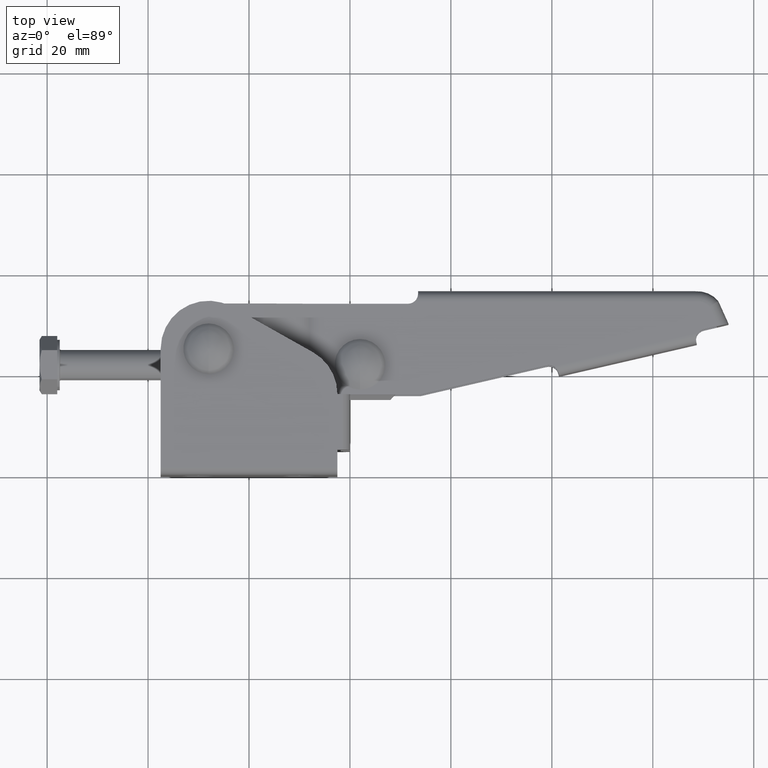
[diagram: clean part render]
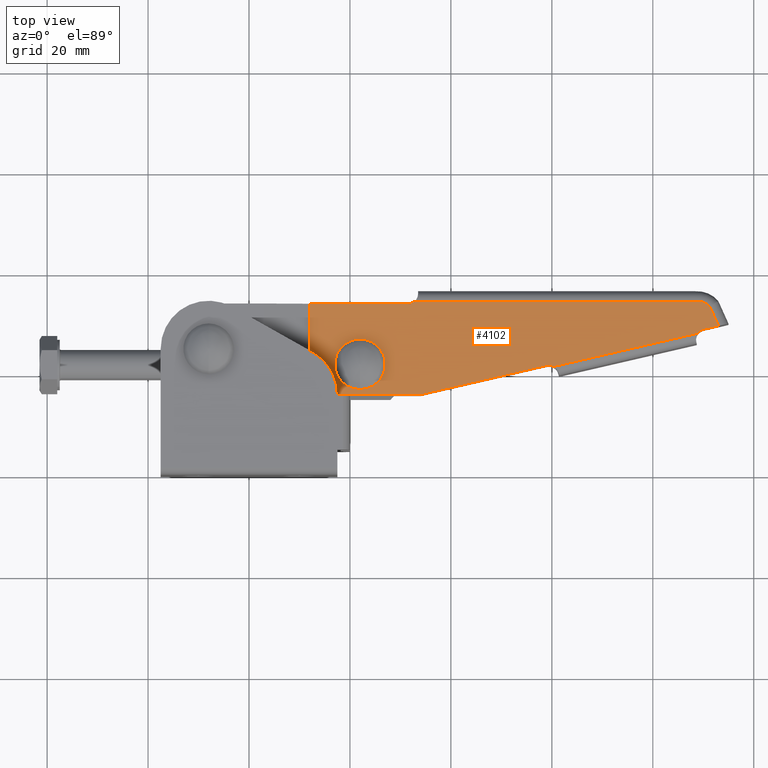
[diagram: same view with one face highlighted and labeled with its STEP entity id]
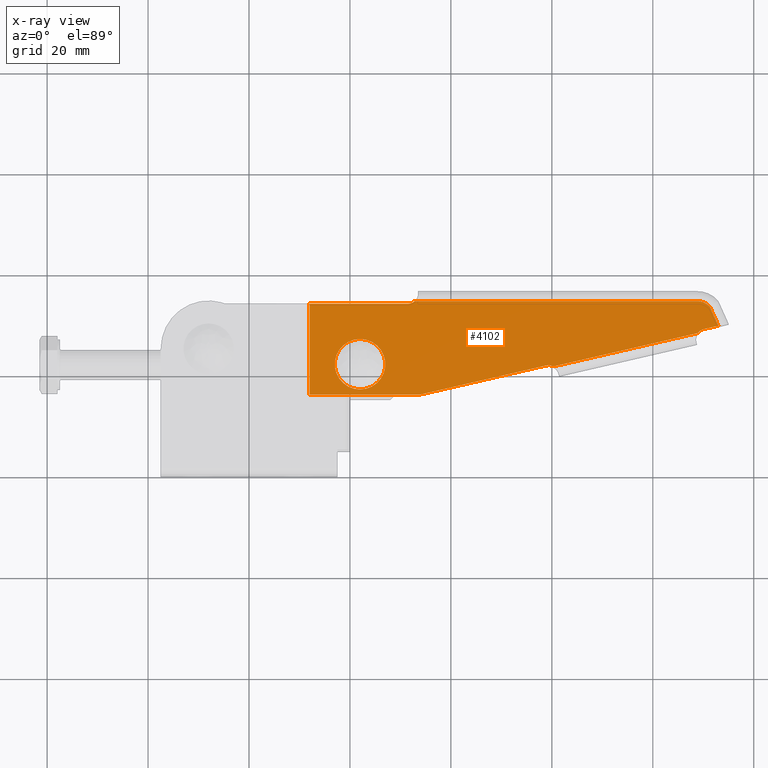
[diagram: x-ray of the same camera — body ghosted, the highlighted face saturated]
A machine part, top view. The second image highlights one B-rep face of the part: STEP entity #4102.
The next image is the same camera in x-ray: the body ghosted, the highlighted face saturated — about 0% of this face is hidden behind the body in this view.
In plain terms, the highlighted planar face has unit normal (0, 0, 1).
Its self-contained STEP definition (entity closure, byte-faithful):
#214 = ORIENTED_EDGE ( 'NONE', *, *, #3003, .T. ) ;
#396 = DIRECTION ( 'NONE',  ( -0.0000000000000000000, -2.168404344971006600E-016, -1.000000000000000000 ) ) ;
#407 = ORIENTED_EDGE ( 'NONE', *, *, #2258, .T. ) ;
#435 = CARTESIAN_POINT ( 'NONE',  ( 11.99999999999998200, 15.99999999999999600, 9.000000000000007100 ) ) ;
#447 = CIRCLE ( 'NONE', #874, 2.000000000000001800 ) ;
#480 = VERTEX_POINT ( 'NONE', #5235 ) ;
#695 = VERTEX_POINT ( 'NONE', #4346 ) ;
#699 = EDGE_LOOP ( 'NONE', ( #2511, #5345, #6655, #407, #4627, #5417, #4513, #3602, #2484, #4794, #6231, #1535 ) ) ;
#839 = CIRCLE ( 'NONE', #2956, 5.000000001240477100 ) ;
#874 = AXIS2_PLACEMENT_3D ( 'NONE', #3671, #396, #4214 ) ;
#966 = ORIENTED_EDGE ( 'NONE', *, *, #2837, .T. ) ;
#974 = VECTOR ( 'NONE', #7031, 1000.000000000000000 ) ;
#1038 = EDGE_CURVE ( 'NONE', #480, #1929, #5240, .T. ) ;
#1061 = LINE ( 'NONE', #6359, #6533 ) ;
#1088 = LINE ( 'NONE', #3313, #5255 ) ;
#1224 = DIRECTION ( 'NONE',  ( -0.0000000000000000000, -1.000000000000000000, -0.0000000000000000000 ) ) ;
#1275 = CIRCLE ( 'NONE', #3940, 5.000000001240477100 ) ;
#1347 = VERTEX_POINT ( 'NONE', #3841 ) ;
#1413 = CARTESIAN_POINT ( 'NONE',  ( 34.00000000379913700, 16.00000000000000000, 9.000000000000005300 ) ) ;
#1521 = EDGE_CURVE ( 'NONE', #4699, #6800, #4135, .T. ) ;
#1535 = ORIENTED_EDGE ( 'NONE', *, *, #1521, .T. ) ;
#1614 = DIRECTION ( 'NONE',  ( 0.0000000000000000000, 0.0000000000000000000, 1.000000000000000000 ) ) ;
#1624 = DIRECTION ( 'NONE',  ( -0.0000000000000000000, -0.0000000000000000000, -1.000000000000000000 ) ) ;
#1674 = AXIS2_PLACEMENT_3D ( 'NONE', #4876, #1614, #5434 ) ;
#1768 = CARTESIAN_POINT ( 'NONE',  ( 22.00000000000000000, 22.00000000000000000, 9.000000000000007100 ) ) ;
#1821 = EDGE_CURVE ( 'NONE', #3613, #1347, #7085, .T. ) ;
#1864 = EDGE_CURVE ( 'NONE', #6335, #3613, #2731, .T. ) ;
#1929 = VERTEX_POINT ( 'NONE', #435 ) ;
#1941 = LINE ( 'NONE', #6022, #4514 ) ;
#2042 = CARTESIAN_POINT ( 'NONE',  ( 31.50000000000000000, 36.00000000000000000, 9.000000000000005300 ) ) ;
#2057 = CARTESIAN_POINT ( 'NONE',  ( 90.55242185000000200, 27.00354712099999700, 9.000000000000005300 ) ) ;
#2139 = CARTESIAN_POINT ( 'NONE',  ( 93.00640885106543000, 29.62270287655959000, 9.000000000000005300 ) ) ;
#2178 = EDGE_LOOP ( 'NONE', ( #214, #966 ) ) ;
#2204 = CARTESIAN_POINT ( 'NONE',  ( 84.40836550869389000, 48.67570477273967800, 9.000000000000005300 ) ) ;
#2258 = EDGE_CURVE ( 'NONE', #1347, #695, #1941, .T. ) ;
#2269 = CARTESIAN_POINT ( 'NONE',  ( 88.92602483049599000, 28.16751994497331100, 9.000000000000005300 ) ) ;
#2288 = CARTESIAN_POINT ( 'NONE',  ( 21.99999999999999600, 16.99999999875952000, 9.000000000000007100 ) ) ;
#2329 = EDGE_CURVE ( 'NONE', #5459, #5688, #4161, .T. ) ;
#2331 = DIRECTION ( 'NONE',  ( 1.000000000000000000, 6.938893902185720900E-016, 0.0000000000000000000 ) ) ;
#2484 = ORIENTED_EDGE ( 'NONE', *, *, #2329, .T. ) ;
#2511 = ORIENTED_EDGE ( 'NONE', *, *, #6177, .T. ) ;
#2562 = VERTEX_POINT ( 'NONE', #2288 ) ;
#2599 = DIRECTION ( 'NONE',  ( 0.0000000000000000000, -1.000000000000000000, 0.0000000000000000000 ) ) ;
#2622 = DIRECTION ( 'NONE',  ( 0.0000000000000000000, -1.000000000000000000, 0.0000000000000000000 ) ) ;
#2680 = CARTESIAN_POINT ( 'NONE',  ( 22.00000000000000000, 27.00000000124047600, 9.000000000000007100 ) ) ;
#2731 = LINE ( 'NONE', #2204, #6917 ) ;
#2752 = DIRECTION ( 'NONE',  ( 0.0000000000000000000, 0.0000000000000000000, 1.000000000000000000 ) ) ;
#2816 = DIRECTION ( 'NONE',  ( 0.9743700647885418200, 0.2249510543295418800, 0.0000000000000000000 ) ) ;
#2837 = EDGE_CURVE ( 'NONE', #2562, #6321, #839, .T. ) ;
#2956 = AXIS2_PLACEMENT_3D ( 'NONE', #1768, #5584, #2331 ) ;
#3003 = EDGE_CURVE ( 'NONE', #6321, #2562, #1275, .T. ) ;
#3191 = CARTESIAN_POINT ( 'NONE',  ( 91.27928112432026400, 33.44996525967106700, 9.000000000000005300 ) ) ;
#3288 = DIRECTION ( 'NONE',  ( -0.4113269093762955100, 0.9114878900034518700, 0.0000000000000000000 ) ) ;
#3313 = CARTESIAN_POINT ( 'NONE',  ( 52.24644730450000900, 15.99999999999999600, 9.000000000000005300 ) ) ;
#3408 = CIRCLE ( 'NONE', #7012, 2.000000000000001800 ) ;
#3587 = DIRECTION ( 'NONE',  ( 0.9743700647492296000, 0.2249510544998220300, -0.0000000000000000000 ) ) ;
#3602 = ORIENTED_EDGE ( 'NONE', *, *, #6973, .T. ) ;
#3613 = VERTEX_POINT ( 'NONE', #3191 ) ;
#3671 = CARTESIAN_POINT ( 'NONE',  ( 59.37257977599998100, 19.80511338200000200, 9.000000000000005300 ) ) ;
#3697 = FACE_OUTER_BOUND ( 'NONE', #699, .T. ) ;
#3763 = CARTESIAN_POINT ( 'NONE',  ( 52.24644730450000900, 34.00000000050000200, 9.000000000000005300 ) ) ;
#3808 = VECTOR ( 'NONE', #1224, 1000.000000000000000 ) ;
#3841 = CARTESIAN_POINT ( 'NONE',  ( 88.48684365152620000, 34.49999999999999300, 9.000000000000005300 ) ) ;
#3875 = VERTEX_POINT ( 'NONE', #6708 ) ;
#3921 = EDGE_CURVE ( 'NONE', #4787, #4699, #1061, .T. ) ;
#3940 = AXIS2_PLACEMENT_3D ( 'NONE', #4886, #1624, #5447 ) ;
#4102 = ADVANCED_FACE ( 'NONE', ( #6802, #3697 ), #5980, .T. ) ;
#4135 = CIRCLE ( 'NONE', #7078, 1.999999999999988000 ) ;
#4161 = LINE ( 'NONE', #6634, #5624 ) ;
#4214 = DIRECTION ( 'NONE',  ( 1.040834085586083300E-014, -1.000000000000000000, 0.0000000000000000000 ) ) ;
#4346 = CARTESIAN_POINT ( 'NONE',  ( 32.82287565553218700, 34.49999999999990800, 9.000000000000005300 ) ) ;
#4404 = DIRECTION ( 'NONE',  ( 1.000000000000000000, 0.0000000000000000000, 0.0000000000000000000 ) ) ;
#4513 = ORIENTED_EDGE ( 'NONE', *, *, #1038, .T. ) ;
#4514 = VECTOR ( 'NONE', #5480, 1000.000000000000000 ) ;
#4627 = ORIENTED_EDGE ( 'NONE', *, *, #6818, .F. ) ;
#4699 = VERTEX_POINT ( 'NONE', #2269 ) ;
#4787 = VERTEX_POINT ( 'NONE', #6715 ) ;
#4794 = ORIENTED_EDGE ( 'NONE', *, *, #5096, .T. ) ;
#4876 = CARTESIAN_POINT ( 'NONE',  ( 88.76411131109333000, 30.99927068702466200, 9.000000000000005300 ) ) ;
#4886 = CARTESIAN_POINT ( 'NONE',  ( 22.00000000000000000, 22.00000000000000000, 9.000000000000007100 ) ) ;
#4897 = CARTESIAN_POINT ( 'NONE',  ( 12.00000000000000000, 15.99999999999999600, 9.000000000000005300 ) ) ;
#4995 = LINE ( 'NONE', #3763, #974 ) ;
#5096 = EDGE_CURVE ( 'NONE', #5688, #4787, #447, .T. ) ;
#5183 = VECTOR ( 'NONE', #3587, 1000.000000000000100 ) ;
#5235 = CARTESIAN_POINT ( 'NONE',  ( 11.99999999999999600, 34.00000000024999700, 9.000000000000005300 ) ) ;
#5240 = LINE ( 'NONE', #5590, #3808 ) ;
#5255 = VECTOR ( 'NONE', #4404, 1000.000000000000000 ) ;
#5345 = ORIENTED_EDGE ( 'NONE', *, *, #1864, .T. ) ;
#5417 = ORIENTED_EDGE ( 'NONE', *, *, #5754, .T. ) ;
#5434 = DIRECTION ( 'NONE',  ( 1.000000000000000000, 0.0000000000000000000, 0.0000000000000000000 ) ) ;
#5447 = DIRECTION ( 'NONE',  ( 1.000000000000000000, -2.081668170655716300E-015, 0.0000000000000000000 ) ) ;
#5459 = VERTEX_POINT ( 'NONE', #1413 ) ;
#5480 = DIRECTION ( 'NONE',  ( -1.000000000000000000, -0.0000000000000000000, -0.0000000000000000000 ) ) ;
#5584 = DIRECTION ( 'NONE',  ( -0.0000000000000000000, -0.0000000000000000000, -1.000000000000000000 ) ) ;
#5590 = CARTESIAN_POINT ( 'NONE',  ( 12.00000000000000000, 25.24999999999999600, 9.000000000000005300 ) ) ;
#5624 = VECTOR ( 'NONE', #2816, 1000.000000000000200 ) ;
#5688 = VERTEX_POINT ( 'NONE', #6147 ) ;
#5744 = CARTESIAN_POINT ( 'NONE',  ( 92.05125987050000400, 29.40218935899999800, 9.000000000000005300 ) ) ;
#5754 = EDGE_CURVE ( 'NONE', #3875, #480, #4995, .T. ) ;
#5820 = CARTESIAN_POINT ( 'NONE',  ( 90.10251974105479200, 28.95228725001264900, 9.000000000000005300 ) ) ;
#5846 = DIRECTION ( 'NONE',  ( 0.0000000000000000000, 2.168404344971007100E-016, 1.000000000000000000 ) ) ;
#5868 = DIRECTION ( 'NONE',  ( -0.0000000000000000000, -2.168404344971022900E-016, -1.000000000000000000 ) ) ;
#5980 = PLANE ( 'NONE',  #6702 ) ;
#6022 = CARTESIAN_POINT ( 'NONE',  ( 52.24644730450000900, 34.49999999999999300, 9.000000000000005300 ) ) ;
#6147 = CARTESIAN_POINT ( 'NONE',  ( 58.92267766796118200, 21.75385351002931200, 9.000000000000005300 ) ) ;
#6177 = EDGE_CURVE ( 'NONE', #6800, #6335, #6675, .T. ) ;
#6231 = ORIENTED_EDGE ( 'NONE', *, *, #3921, .T. ) ;
#6321 = VERTEX_POINT ( 'NONE', #2680 ) ;
#6335 = VERTEX_POINT ( 'NONE', #2139 ) ;
#6359 = CARTESIAN_POINT ( 'NONE',  ( 88.26625513828727800, 28.01520010956469900, 9.000000000000005300 ) ) ;
#6533 = VECTOR ( 'NONE', #6931, 1000.000000000000100 ) ;
#6567 = DIRECTION ( 'NONE',  ( 1.000000000000000000, 0.0000000000000000000, 0.0000000000000000000 ) ) ;
#6634 = CARTESIAN_POINT ( 'NONE',  ( 34.00000000759818900, 15.99999999999999600, 9.000000000000005300 ) ) ;
#6655 = ORIENTED_EDGE ( 'NONE', *, *, #1821, .T. ) ;
#6675 = LINE ( 'NONE', #5744, #5183 ) ;
#6702 = AXIS2_PLACEMENT_3D ( 'NONE', #4897, #2752, #6567 ) ;
#6708 = CARTESIAN_POINT ( 'NONE',  ( 31.49999999961530900, 34.00000000024999700, 9.000000000000005300 ) ) ;
#6715 = CARTESIAN_POINT ( 'NONE',  ( 60.32412363313899600, 21.56425075240090900, 9.000000000000005300 ) ) ;
#6800 = VERTEX_POINT ( 'NONE', #5820 ) ;
#6802 = FACE_BOUND ( 'NONE', #2178, .T. ) ;
#6818 = EDGE_CURVE ( 'NONE', #3875, #695, #3408, .T. ) ;
#6917 = VECTOR ( 'NONE', #3288, 1000.000000000000000 ) ;
#6931 = DIRECTION ( 'NONE',  ( 0.9743700647823491100, 0.2249510543563658900, -0.0000000000000000000 ) ) ;
#6973 = EDGE_CURVE ( 'NONE', #1929, #5459, #1088, .T. ) ;
#7012 = AXIS2_PLACEMENT_3D ( 'NONE', #2042, #5846, #2599 ) ;
#7031 = DIRECTION ( 'NONE',  ( -1.000000000000000000, -0.0000000000000000000, -0.0000000000000000000 ) ) ;
#7078 = AXIS2_PLACEMENT_3D ( 'NONE', #2057, #5868, #2622 ) ;
#7085 = CIRCLE ( 'NONE', #1674, 3.511692338142191600 ) ;